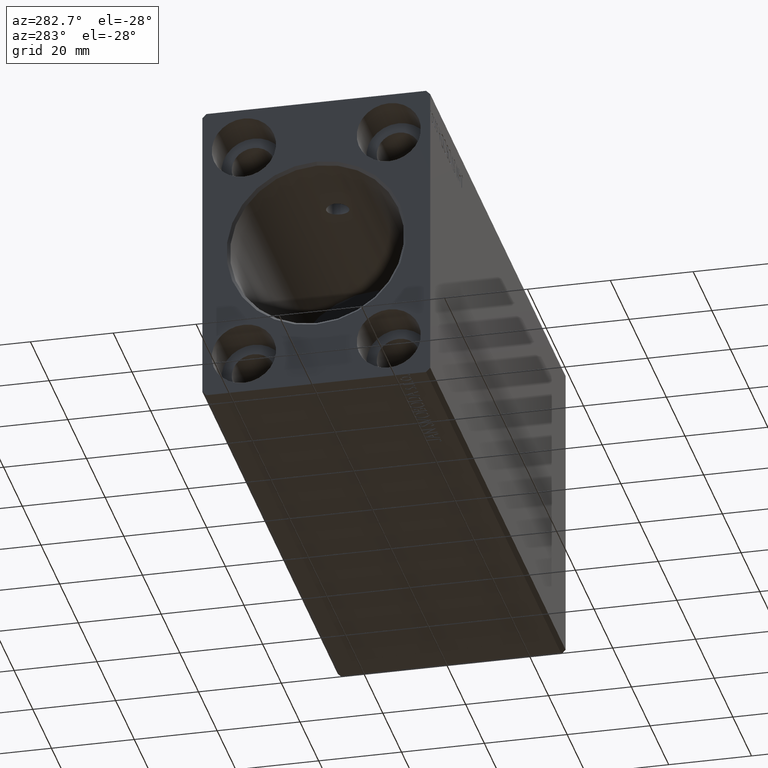
[diagram: clean part render]
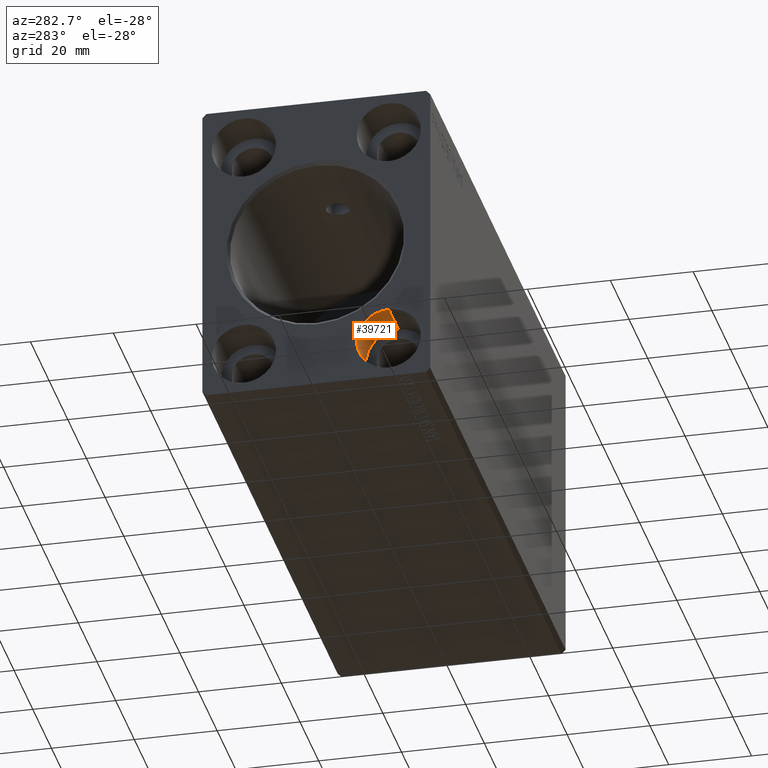
[diagram: same view with one face highlighted and labeled with its STEP entity id]
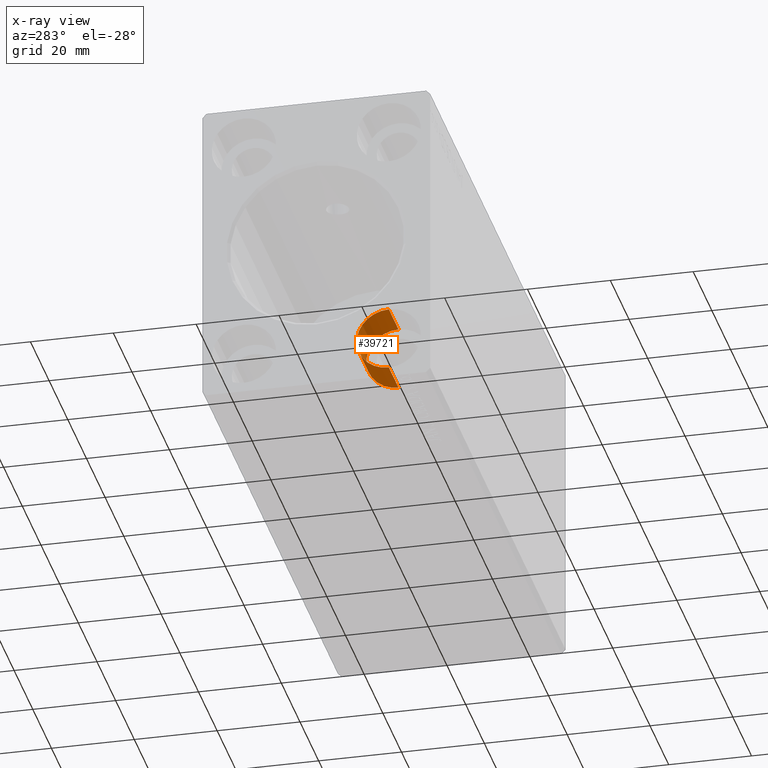
[diagram: x-ray of the same camera — body ghosted, the highlighted face saturated]
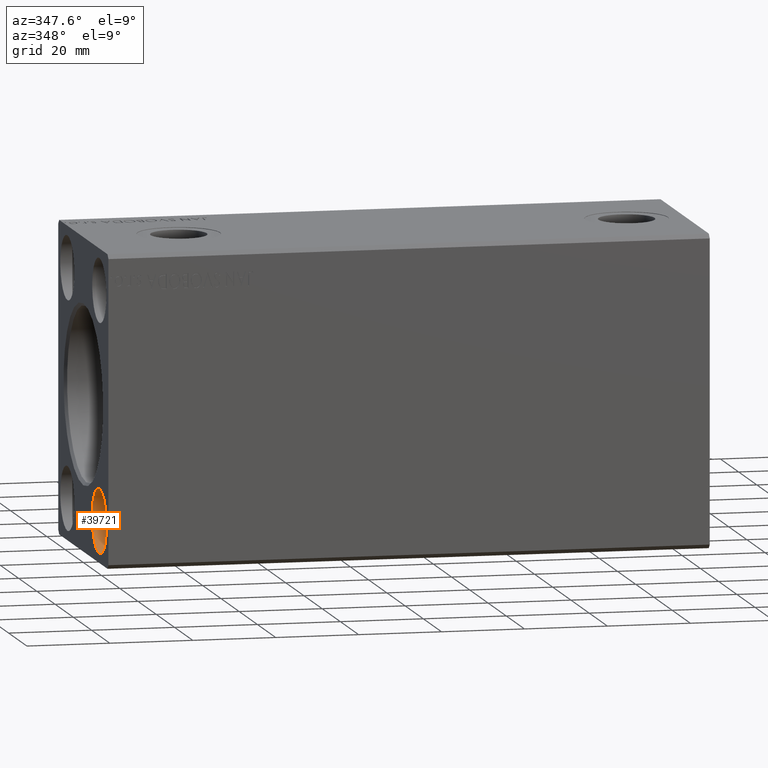
[diagram: same view with one face highlighted and labeled with its STEP entity id]
A machine part, auxiliary view. The second image highlights one B-rep face of the part: STEP entity #39721.
The next image is the same camera in x-ray: the body ghosted, the highlighted face saturated — about 0% of this face is hidden behind the body in this view.
A second angle (auxiliary view) of the same face is appended — the face is thin or edge-on in the first view.
In plain terms, the highlighted cylindrical surface (edge-blend (fillet) strip) has radius 7.75 mm, axis along (-1, -0, -0).
Its self-contained STEP definition (entity closure, byte-faithful):
#2006 = AXIS2_PLACEMENT_3D ( 'NONE', #28009, #37659, #21142 ) ;
#2944 = VERTEX_POINT ( 'NONE', #38689 ) ;
#3466 = CYLINDRICAL_SURFACE ( 'NONE', #10454, 7.750000000000003553 ) ;
#5600 = EDGE_CURVE ( 'NONE', #5609, #2944, #16147, .T. ) ;
#5609 = VERTEX_POINT ( 'NONE', #6907 ) ;
#6907 = CARTESIAN_POINT ( 'NONE',  ( 10.33000000000000007, -17.50000000000000000, -19.74999999999999645 ) ) ;
#8462 = VERTEX_POINT ( 'NONE', #34255 ) ;
#9755 = CIRCLE ( 'NONE', #25563, 7.750000000000003553 ) ;
#10454 = AXIS2_PLACEMENT_3D ( 'NONE', #29668, #25811, #38479 ) ;
#12746 = EDGE_LOOP ( 'NONE', ( #25651, #41263, #41749, #22757 ) ) ;
#13136 = CARTESIAN_POINT ( 'NONE',  ( 10.33000000000000007, -17.50000000000000000, -19.74999999999999645 ) ) ;
#15918 = FACE_OUTER_BOUND ( 'NONE', #12746, .T. ) ;
#16147 = LINE ( 'NONE', #13136, #26516 ) ;
#17170 = CARTESIAN_POINT ( 'NONE',  ( 10.33000000000000007, -17.50000000000000000, -35.25000000000000000 ) ) ;
#17752 = DIRECTION ( 'NONE',  ( 0.000000000000000000, 0.000000000000000000, -1.000000000000000000 ) ) ;
#21142 = DIRECTION ( 'NONE',  ( 0.000000000000000000, 0.000000000000000000, -1.000000000000000000 ) ) ;
#22757 = ORIENTED_EDGE ( 'NONE', *, *, #25679, .F. ) ;
#23168 = DIRECTION ( 'NONE',  ( 1.000000000000000000, -0.000000000000000000, -0.000000000000000000 ) ) ;
#23292 = CIRCLE ( 'NONE', #2006, 7.750000000000003553 ) ;
#24147 = VECTOR ( 'NONE', #33080, 1000.000000000000000 ) ;
#25563 = AXIS2_PLACEMENT_3D ( 'NONE', #42481, #23168, #17752 ) ;
#25651 = ORIENTED_EDGE ( 'NONE', *, *, #38864, .F. ) ;
#25679 = EDGE_CURVE ( 'NONE', #30495, #2944, #23292, .T. ) ;
#25811 = DIRECTION ( 'NONE',  ( -1.000000000000000000, -0.000000000000000000, -0.000000000000000000 ) ) ;
#26516 = VECTOR ( 'NONE', #35918, 1000.000000000000000 ) ;
#28009 = CARTESIAN_POINT ( 'NONE',  ( 0.000000000000000000, -17.50000000000000000, -27.50000000000000000 ) ) ;
#29668 = CARTESIAN_POINT ( 'NONE',  ( 10.33000000000000007, -17.50000000000000000, -27.50000000000000000 ) ) ;
#30495 = VERTEX_POINT ( 'NONE', #32871 ) ;
#32871 = CARTESIAN_POINT ( 'NONE',  ( 0.000000000000000000, -17.50000000000000000, -35.25000000000000000 ) ) ;
#33080 = DIRECTION ( 'NONE',  ( -1.000000000000000000, -0.000000000000000000, -0.000000000000000000 ) ) ;
#34255 = CARTESIAN_POINT ( 'NONE',  ( 10.33000000000000007, -17.50000000000000000, -35.25000000000000000 ) ) ;
#35918 = DIRECTION ( 'NONE',  ( -1.000000000000000000, -0.000000000000000000, -0.000000000000000000 ) ) ;
#36305 = LINE ( 'NONE', #17170, #24147 ) ;
#37659 = DIRECTION ( 'NONE',  ( 1.000000000000000000, -0.000000000000000000, -0.000000000000000000 ) ) ;
#38479 = DIRECTION ( 'NONE',  ( 0.000000000000000000, 0.000000000000000000, 1.000000000000000000 ) ) ;
#38689 = CARTESIAN_POINT ( 'NONE',  ( 0.000000000000000000, -17.50000000000000000, -19.74999999999999645 ) ) ;
#38864 = EDGE_CURVE ( 'NONE', #8462, #30495, #36305, .T. ) ;
#39169 = EDGE_CURVE ( 'NONE', #8462, #5609, #9755, .T. ) ;
#39721 = ADVANCED_FACE ( 'NONE', ( #15918 ), #3466, .F. ) ;
#41263 = ORIENTED_EDGE ( 'NONE', *, *, #39169, .T. ) ;
#41749 = ORIENTED_EDGE ( 'NONE', *, *, #5600, .T. ) ;
#42481 = CARTESIAN_POINT ( 'NONE',  ( 10.33000000000000007, -17.50000000000000000, -27.50000000000000000 ) ) ;